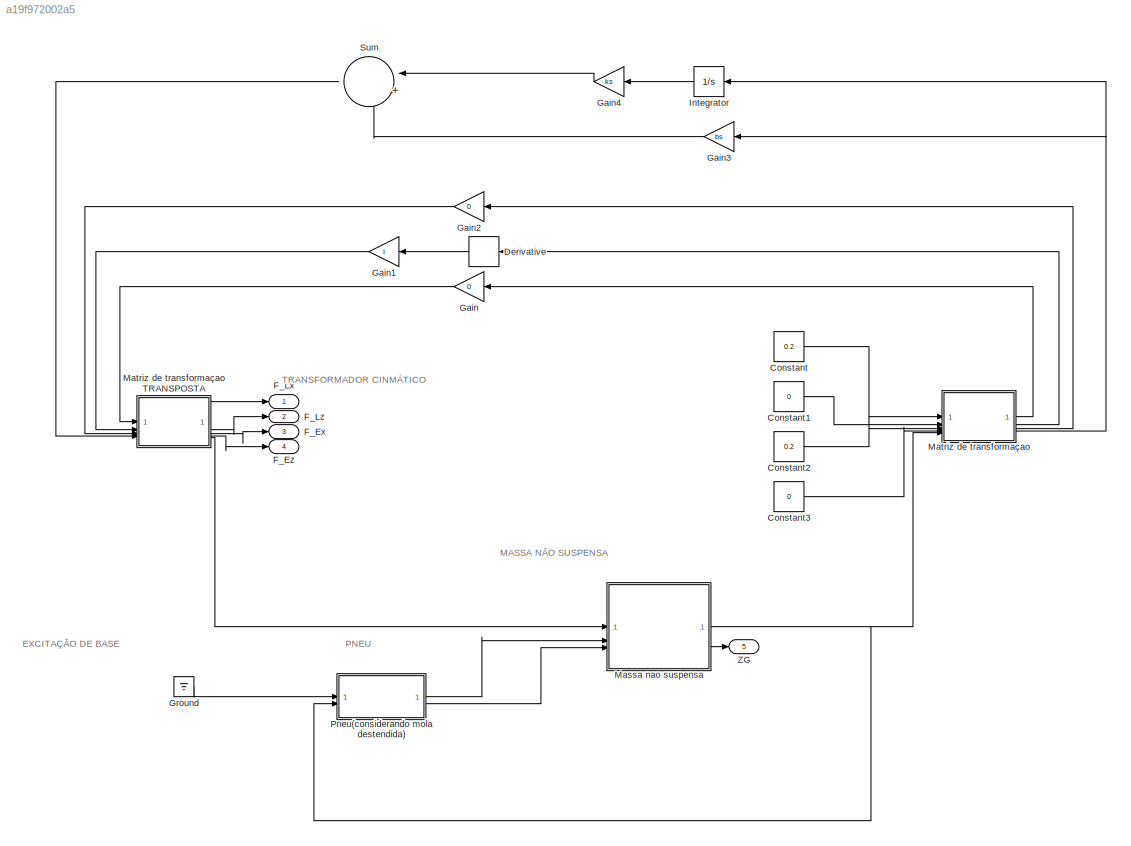
MODEL slx_a19f972002a5
KIND model
CONFIG AbsTol = auto
CONFIG EnableMultiTasking = off
CONFIG FixedStep = auto
CONFIG MaxStep = auto
CONFIG MinStep = auto
CONFIG RelTol = 1e-3
CONFIG SampleTimeConstraint = Unconstrained
CONFIG SolverName = VariableStepAuto
CONFIG StartTime = 0.0
CONFIG StopTime = 10.0
BLOCK [Constant] Constant
  Value = 0.2
BLOCK [Constant] Constant1
  Value = 0
BLOCK [Constant] Constant2
  Value = 0.2
BLOCK [Constant] Constant3
  Value = 0
BLOCK [Derivative] Derivative
BLOCK [Outport] F_Ex
  Port = 3
BLOCK [Outport] F_Ez
  Port = 4
BLOCK [Outport] F_Lx
BLOCK [Outport] F_Lz
  Port = 2
BLOCK [Gain] Gain
  Gain = 0
BLOCK [Gain] Gain1
  Gain = I
BLOCK [Gain] Gain2
  Gain = 0
BLOCK [Gain] Gain3
  Gain = bs
BLOCK [Gain] Gain4
  Gain = ks
BLOCK [Ground] Ground
BLOCK [Integrator] Integrator
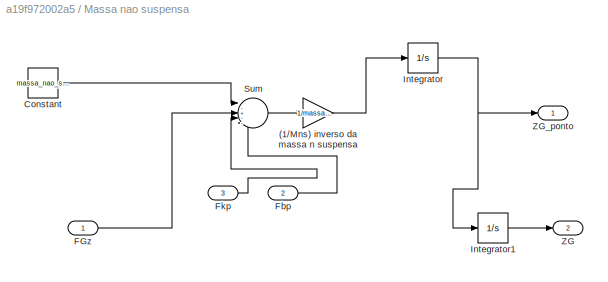
BLOCK [SubSystem] Massa nao suspensa
BLOCK [Gain] Massa nao suspensa/(1//Mns) inverso da massa n suspensa
  Gain = 1/massa_nao_suspensa
BLOCK [Constant] Massa nao suspensa/Constant
  Value = massa_nao_suspensa*g
BLOCK [Inport] Massa nao suspensa/FGz
BLOCK [Inport] Massa nao suspensa/Fbp
  Port = 2
BLOCK [Inport] Massa nao suspensa/Fkp
  Port = 3
BLOCK [Integrator] Massa nao suspensa/Integrator
BLOCK [Integrator] Massa nao suspensa/Integrator1
  InitialCondition = 1
BLOCK [Sum] Massa nao suspensa/Sum
  Inputs = |-+---
BLOCK [Outport] Massa nao suspensa/ZG
  Port = 2
BLOCK [Outport] Massa nao suspensa/ZG_ponto
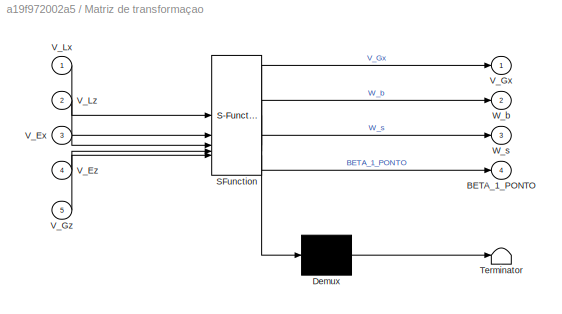
BLOCK [SubSystem] Matriz de transformaçao
  ErrorFcn = Stateflow.Translate.translate
  PermitHierarchicalResolution = ExplicitOnly
  SFBlockType = MATLAB Function
  TreatAsAtomicUnit = on
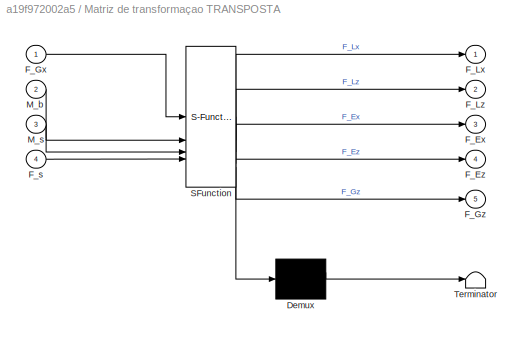
BLOCK [SubSystem] Matriz de transformaçao TRANSPOSTA
  ErrorFcn = Stateflow.Translate.translate
  PermitHierarchicalResolution = ExplicitOnly
  SFBlockType = MATLAB Function
  TreatAsAtomicUnit = on
BLOCK [Demux] Matriz de transformaçao TRANSPOSTA/ Demux 
  Outputs = 1
BLOCK [S-Function] Matriz de transformaçao TRANSPOSTA/ SFunction 
  EnableBusSupport = off
  FunctionName = sf_sfun
  PortCounts = [4 6]
  SFcnIsStateOwnerBlock = off
  SFunctionDeploymentMode = off
  Tag = Stateflow S-Function 1
BLOCK [Terminator] Matriz de transformaçao TRANSPOSTA/ Terminator 
BLOCK [Outport] Matriz de transformaçao TRANSPOSTA/F_Ex
  Port = 3
BLOCK [Outport] Matriz de transformaçao TRANSPOSTA/F_Ez
  Port = 4
BLOCK [Inport] Matriz de transformaçao TRANSPOSTA/F_Gx
BLOCK [Outport] Matriz de transformaçao TRANSPOSTA/F_Gz
  Port = 5
BLOCK [Outport] Matriz de transformaçao TRANSPOSTA/F_Lx
BLOCK [Outport] Matriz de transformaçao TRANSPOSTA/F_Lz
  Port = 2
BLOCK [Inport] Matriz de transformaçao TRANSPOSTA/F_s
  Port = 4
BLOCK [Inport] Matriz de transformaçao TRANSPOSTA/M_b
  Port = 2
BLOCK [Inport] Matriz de transformaçao TRANSPOSTA/M_s
  Port = 3
BLOCK [Demux] Matriz de transformaçao/ Demux 
  Outputs = 1
BLOCK [S-Function] Matriz de transformaçao/ SFunction 
  EnableBusSupport = off
  FunctionName = sf_sfun
  PortCounts = [5 5]
  SFcnIsStateOwnerBlock = off
  SFunctionDeploymentMode = off
  Tag = Stateflow S-Function 2
BLOCK [Terminator] Matriz de transformaçao/ Terminator 
BLOCK [Outport] Matriz de transformaçao/BETA_1_PONTO
  Port = 4
BLOCK [Inport] Matriz de transformaçao/V_Ex
  Port = 3
BLOCK [Inport] Matriz de transformaçao/V_Ez
  Port = 4
BLOCK [Outport] Matriz de transformaçao/V_Gx
  VectorParamsAs1DForOutWhenUnconnected = off
BLOCK [Inport] Matriz de transformaçao/V_Gz
  Port = 5
BLOCK [Inport] Matriz de transformaçao/V_Lx
BLOCK [Inport] Matriz de transformaçao/V_Lz
  Port = 2
BLOCK [Outport] Matriz de transformaçao/W_b
  Port = 2
BLOCK [Outport] Matriz de transformaçao/W_s
  Port = 3
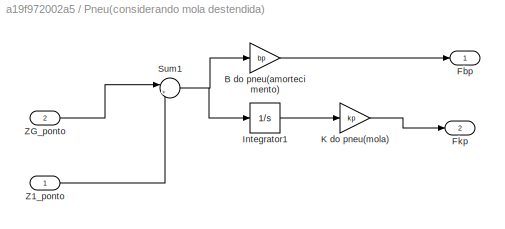
BLOCK [SubSystem] Pneu(considerando mola destendida)
BLOCK [Gain] Pneu(considerando mola destendida)/B do pneu(amortecimento)
  Gain = bp
BLOCK [Outport] Pneu(considerando mola destendida)/Fbp
BLOCK [Outport] Pneu(considerando mola destendida)/Fkp
  Port = 2
BLOCK [Integrator] Pneu(considerando mola destendida)/Integrator1
BLOCK [Gain] Pneu(considerando mola destendida)/K do pneu(mola)
  Gain = kp
BLOCK [Sum] Pneu(considerando mola destendida)/Sum1
  Inputs = |+-
BLOCK [Inport] Pneu(considerando mola destendida)/Z1_ponto
BLOCK [Inport] Pneu(considerando mola destendida)/ZG_ponto
  Port = 2
BLOCK [Sum] Sum
  Inputs = |++
BLOCK [Outport] ZG
  Port = 5
ANNOTATION (root): EXCITAÇÃO DE BASE
ANNOTATION (root): MASSA NÃO SUSPENSA
ANNOTATION (root): PNEU
ANNOTATION (root): TRANSFORMADOR CINMÁTICO
LINE Constant1:1 -> Matriz de transformaçao:2
LINE Constant2:1 -> Matriz de transformaçao:3
LINE Constant3:1 -> Matriz de transformaçao:4
LINE Constant:1 -> Matriz de transformaçao:1
LINE Derivative:1 -> Gain1:1
LINE Gain1:1 -> Matriz de transformaçao TRANSPOSTA:2
LINE Gain2:1 -> Matriz de transformaçao TRANSPOSTA:3
LINE Gain3:1 -> Sum:2
LINE Gain4:1 -> Sum:1
LINE Gain:1 -> Matriz de transformaçao TRANSPOSTA:1
LINE Ground:1 -> Pneu(considerando mola destendida):1
LINE Integrator:1 -> Gain4:1
LINE Massa nao suspensa/(1//Mns) inverso da massa n suspensa:1 -> Massa nao suspensa/Integrator:1
LINE Massa nao suspensa/Constant:1 -> Massa nao suspensa/Sum:1
LINE Massa nao suspensa/FGz:1 -> Massa nao suspensa/Sum:3
LINE Massa nao suspensa/Fbp:1 -> Massa nao suspensa/Sum:5
LINE Massa nao suspensa/Fkp:1 -> Massa nao suspensa/Sum:4
LINE Massa nao suspensa/Integrator1:1 -> Massa nao suspensa/ZG:1
NET Massa nao suspensa/Integrator:1 -> Massa nao suspensa/Integrator1:1, Massa nao suspensa/ZG_ponto:1
LINE Massa nao suspensa/Sum:1 -> Massa nao suspensa/(1//Mns) inverso da massa n suspensa:1
NET Massa nao suspensa:1 -> Matriz de transformaçao:5, Pneu(considerando mola destendida):2
LINE Massa nao suspensa:2 -> ZG:1
LINE Matriz de transformaçao TRANSPOSTA:1 -> F_Lx:1
LINE Matriz de transformaçao TRANSPOSTA:2 -> F_Lz:1
LINE Matriz de transformaçao TRANSPOSTA:3 -> F_Ex:1
LINE Matriz de transformaçao TRANSPOSTA:4 -> F_Ez:1
LINE Matriz de transformaçao TRANSPOSTA:5 -> Massa nao suspensa:1
LINE Matriz de transformaçao:1 -> Gain:1
LINE Matriz de transformaçao:2 -> Derivative:1
LINE Matriz de transformaçao:3 -> Gain2:1
NET Matriz de transformaçao:4 -> Gain3:1, Integrator:1
LINE Pneu(considerando mola destendida)/B do pneu(amortecimento):1 -> Pneu(considerando mola destendida)/Fbp:1
LINE Pneu(considerando mola destendida)/Integrator1:1 -> Pneu(considerando mola destendida)/K do pneu(mola):1
LINE Pneu(considerando mola destendida)/K do pneu(mola):1 -> Pneu(considerando mola destendida)/Fkp:1
NET Pneu(considerando mola destendida)/Sum1:1 -> Pneu(considerando mola destendida)/B do pneu(amortecimento):1, Pneu(considerando mola destendida)/Integrator1:1
LINE Pneu(considerando mola destendida)/Z1_ponto:1 -> Pneu(considerando mola destendida)/Sum1:2
LINE Pneu(considerando mola destendida)/ZG_ponto:1 -> Pneu(considerando mola destendida)/Sum1:1
LINE Pneu(considerando mola destendida):1 -> Massa nao suspensa:2
LINE Pneu(considerando mola destendida):2 -> Massa nao suspensa:3
LINE Sum:1 -> Matriz de transformaçao TRANSPOSTA:4
note: NET lines group one-source signal fan-out (src -> all destinations, sorted); 1:1 wires keep LINE
CHART Matriz de transformaçao TRANSPOSTA states=1 transitions=1
  STATE_LABEL 'eML_blk_kernel()'
  STATE_LABEL 'SCRIPT:\nfunction [F_Lx, F_Lz, F_Ex, F_Ez, F_Gz] = minhaFuncaoForcas(F_Gx, M_b, M_s, F_s)\n% Função para calcular as forças de saída usando a transposta da matriz M\n\n    % Atribuir valores fixos para os parâmetros\n    BETA_1 = 0.05465;    %fim de curso minimo 0.05465  % fim de curso maximo 0.0589 em metors\n    BETA_2 = 2.729;  %fim de curso minimo 2.729 radianos %fim de curso maximo 2.591 radianos\n ...<+1217ch>'
CHART Matriz de transformaçao states=1 transitions=1
  STATE_LABEL 'eML_blk_kernel()'
  STATE_LABEL 'SCRIPT:\nfunction [V_Gx, W_b, W_s, BETA_1_PONTO] = minhaFuncao(V_Lx, V_Lz, V_Ex, V_Ez, V_Gz)\n% Função para calcular variáveis de saída da suspensão a partir de múltiplas entradas\n\n     % Atribuir valores fixos para os parâmetros\n    BETA_1 = 0.05465;    %fim de curso minimo 0.05465  % fim de curso maximo 0.0589 em metors\n    BETA_2 = 2.729;  %fim de curso minimo 2.729 radianos %fim de curso maximo ...<+1052ch>'
CHART  states=0 transitions=0
CHART  states=0 transitions=0
